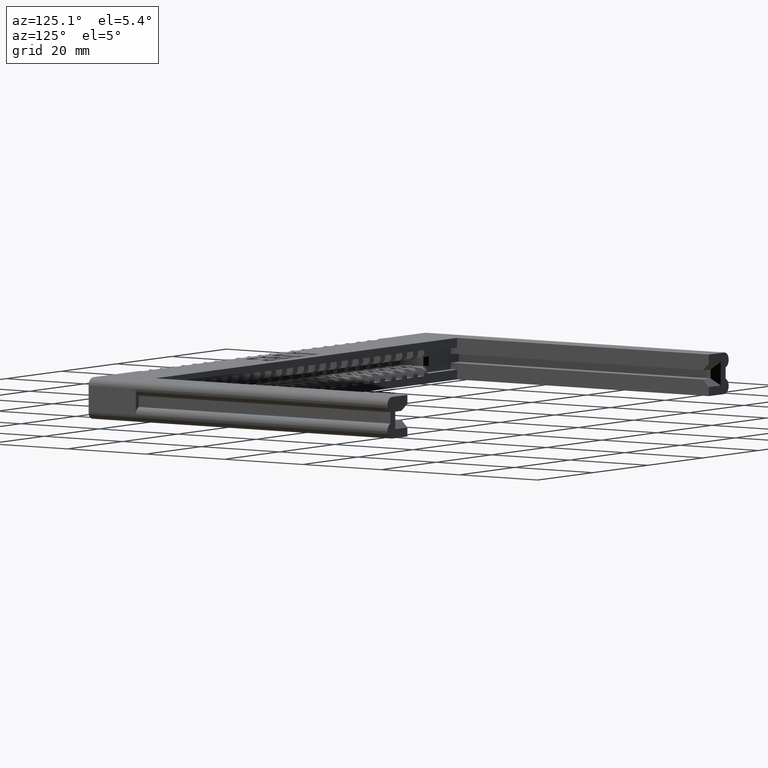
[diagram: clean part render]
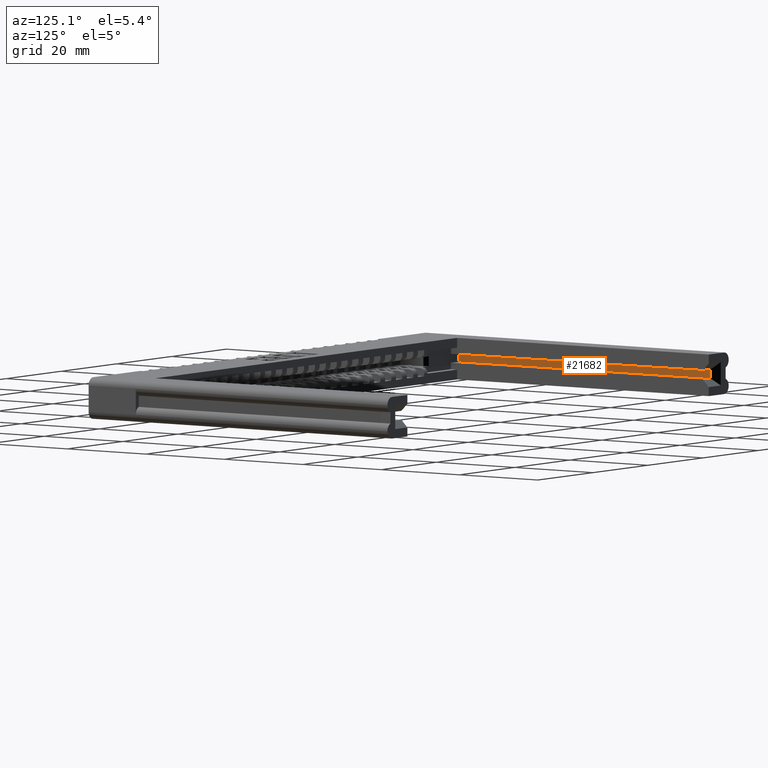
[diagram: same view with one face highlighted and labeled with its STEP entity id]
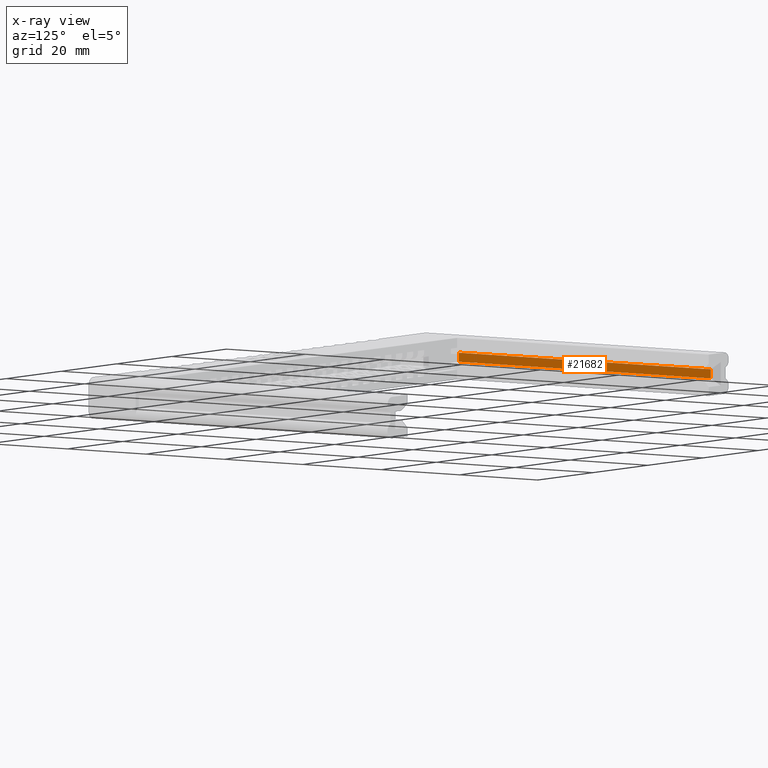
[diagram: x-ray of the same camera — body ghosted, the highlighted face saturated]
A machine part, auxiliary view. The second image highlights one B-rep face of the part: STEP entity #21682.
The next image is the same camera in x-ray: the body ghosted, the highlighted face saturated — about 0% of this face is hidden behind the body in this view.
In plain terms, the highlighted planar face has unit normal (1, 0, 0).
Its self-contained STEP definition (entity closure, byte-faithful):
#1131 = VECTOR ( 'NONE', #10326, 39.37007874015748100 ) ;
#1221 = ORIENTED_EDGE ( 'NONE', *, *, #2684, .T. ) ;
#1484 = VERTEX_POINT ( 'NONE', #20869 ) ;
#1556 = ORIENTED_EDGE ( 'NONE', *, *, #4437, .F. ) ;
#1808 = DIRECTION ( 'NONE',  ( -0.0000000000000000000, 0.0000000000000000000, -1.000000000000000000 ) ) ;
#2684 = EDGE_CURVE ( 'NONE', #1484, #22024, #4040, .T. ) ;
#2886 = DIRECTION ( 'NONE',  ( 0.0000000000000000000, -1.000000000000000000, 0.0000000000000000000 ) ) ;
#2950 = CARTESIAN_POINT ( 'NONE',  ( 0.1724999999999998800, 0.4109999999999994800, -0.03699999999999999800 ) ) ;
#2970 = DIRECTION ( 'NONE',  ( 0.0000000000000000000, 0.0000000000000000000, 1.000000000000000000 ) ) ;
#3172 = CARTESIAN_POINT ( 'NONE',  ( 0.1724999999999998800, 2.939999999999999900, 0.03699999999999999800 ) ) ;
#4040 = LINE ( 'NONE', #3172, #13292 ) ;
#4437 = EDGE_CURVE ( 'NONE', #11688, #6736, #5152, .T. ) ;
#5152 = LINE ( 'NONE', #2950, #14344 ) ;
#6195 = LINE ( 'NONE', #12180, #11103 ) ;
#6736 = VERTEX_POINT ( 'NONE', #19894 ) ;
#6771 = LINE ( 'NONE', #19303, #1131 ) ;
#7438 = CARTESIAN_POINT ( 'NONE',  ( 0.1724999999999998800, 3.000000000000000400, -0.03699999999999999800 ) ) ;
#10326 = DIRECTION ( 'NONE',  ( 0.0000000000000000000, -1.000000000000000000, 0.0000000000000000000 ) ) ;
#11103 = VECTOR ( 'NONE', #2886, 39.37007874015748100 ) ;
#11145 = PLANE ( 'NONE',  #12796 ) ;
#11688 = VERTEX_POINT ( 'NONE', #12030 ) ;
#11731 = EDGE_CURVE ( 'NONE', #22024, #6736, #6771, .T. ) ;
#11753 = EDGE_CURVE ( 'NONE', #1484, #11688, #6195, .T. ) ;
#12030 = CARTESIAN_POINT ( 'NONE',  ( 0.1724999999999998800, 0.4109999999999994800, -0.03699999999999999800 ) ) ;
#12180 = CARTESIAN_POINT ( 'NONE',  ( 0.1724999999999998800, 3.000000000000000400, -0.03699999999999999800 ) ) ;
#12796 = AXIS2_PLACEMENT_3D ( 'NONE', #7438, #12963, #1808 ) ;
#12801 = FACE_OUTER_BOUND ( 'NONE', #19651, .T. ) ;
#12963 = DIRECTION ( 'NONE',  ( 1.000000000000000000, 0.0000000000000000000, -0.0000000000000000000 ) ) ;
#13292 = VECTOR ( 'NONE', #2970, 39.37007874015748100 ) ;
#14344 = VECTOR ( 'NONE', #15853, 39.37007874015748100 ) ;
#15853 = DIRECTION ( 'NONE',  ( 0.0000000000000000000, 0.0000000000000000000, 1.000000000000000000 ) ) ;
#19283 = CARTESIAN_POINT ( 'NONE',  ( 0.1724999999999998800, 2.940000000000000400, 0.03699999999999999800 ) ) ;
#19303 = CARTESIAN_POINT ( 'NONE',  ( 0.1724999999999998800, 3.000000000000000400, 0.03699999999999999800 ) ) ;
#19651 = EDGE_LOOP ( 'NONE', ( #21474, #1221, #20591, #1556 ) ) ;
#19894 = CARTESIAN_POINT ( 'NONE',  ( 0.1724999999999998800, 0.4109999999999994800, 0.03699999999999999800 ) ) ;
#20591 = ORIENTED_EDGE ( 'NONE', *, *, #11731, .T. ) ;
#20869 = CARTESIAN_POINT ( 'NONE',  ( 0.1724999999999998800, 2.939999999999999900, -0.03699999999999999800 ) ) ;
#21474 = ORIENTED_EDGE ( 'NONE', *, *, #11753, .F. ) ;
#21682 = ADVANCED_FACE ( 'NONE', ( #12801 ), #11145, .T. ) ;
#22024 = VERTEX_POINT ( 'NONE', #19283 ) ;